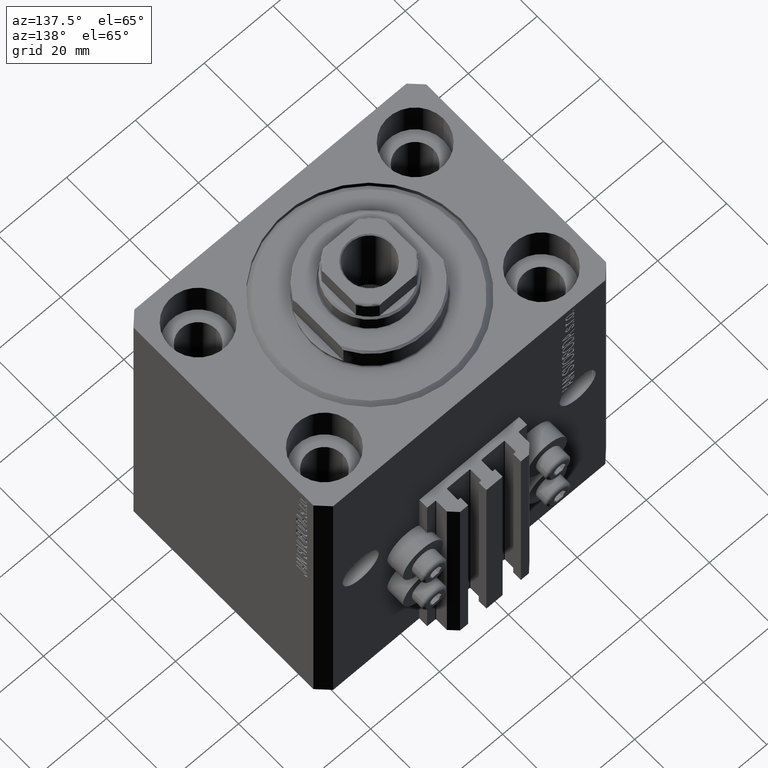
[diagram: clean part render]
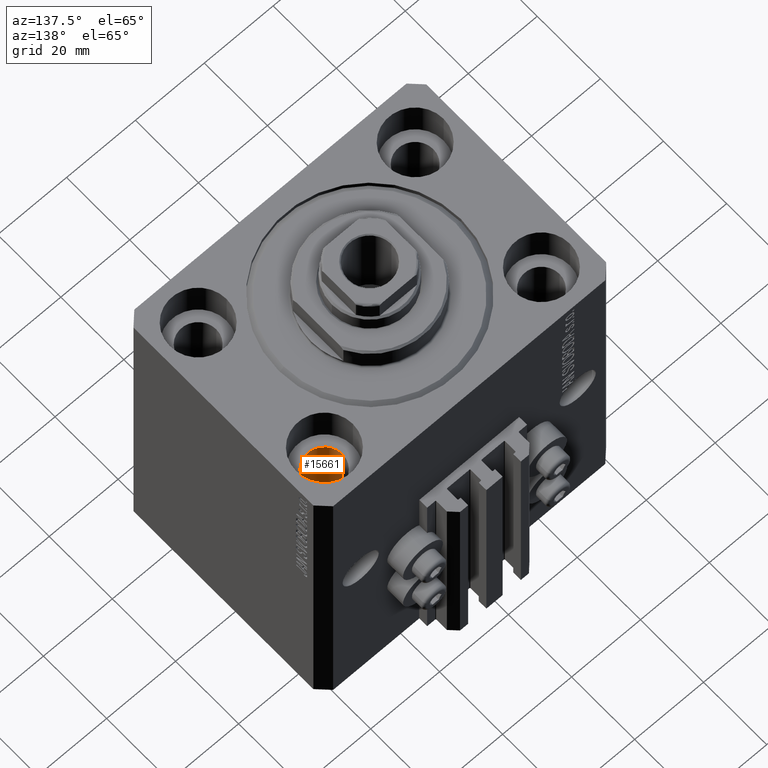
[diagram: same view with one face highlighted and labeled with its STEP entity id]
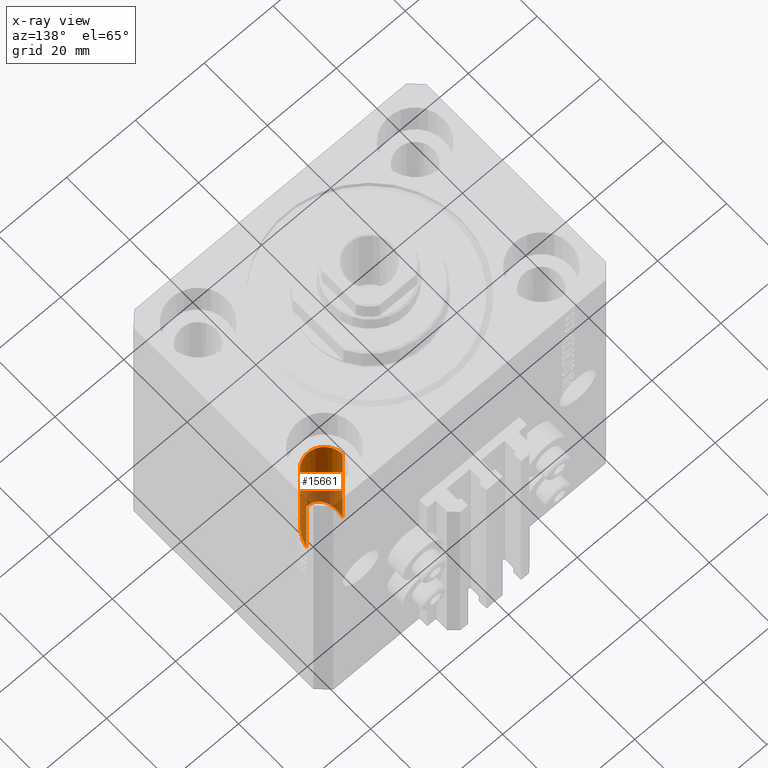
[diagram: x-ray of the same camera — body ghosted, the highlighted face saturated]
A machine part, auxiliary view. The second image highlights one B-rep face of the part: STEP entity #15661.
The next image is the same camera in x-ray: the body ghosted, the highlighted face saturated — about 48% of this face is hidden behind the body in this view.
In plain terms, the highlighted cylindrical surface (edge-blend (fillet) strip) has radius 5.25 mm, axis along (0, 0, 1).
Its self-contained STEP definition (entity closure, byte-faithful):
#145 = CARTESIAN_POINT ( 'NONE',  ( 31.50000000000000000, 20.00000000000001066, -11.00000000000000000 ) ) ;
#165 = VECTOR ( 'NONE', #5673, 1000.000000000000000 ) ;
#500 = VERTEX_POINT ( 'NONE', #22825 ) ;
#895 = CARTESIAN_POINT ( 'NONE',  ( 36.75000000000000711, 20.00000000000001066, -43.00000000000000000 ) ) ;
#1421 = DIRECTION ( 'NONE',  ( -0.000000000000000000, -0.000000000000000000, 1.000000000000000000 ) ) ;
#2019 = CARTESIAN_POINT ( 'NONE',  ( 36.75000000000000000, 20.00000000000001066, -11.00000000000000000 ) ) ;
#2287 = LINE ( 'NONE', #20787, #165 ) ;
#5673 = DIRECTION ( 'NONE',  ( -0.000000000000000000, -0.000000000000000000, 1.000000000000000000 ) ) ;
#8398 = CARTESIAN_POINT ( 'NONE',  ( 31.50000000000000000, 20.00000000000001066, -93.00000000000000000 ) ) ;
#9946 = AXIS2_PLACEMENT_3D ( 'NONE', #8398, #1421, #34827 ) ;
#12435 = CARTESIAN_POINT ( 'NONE',  ( 26.25000000000001776, 9.500000000000023093, -32.50000000000000711 ) ) ;
#13772 = EDGE_LOOP ( 'NONE', ( #38126, #28901, #42080, #33046 ) ) ;
#15281 = DIRECTION ( 'NONE',  ( 0.000000000000000000, 0.000000000000000000, 1.000000000000000000 ) ) ;
#15661 = ADVANCED_FACE ( 'NONE', ( #41345 ), #31223, .F. ) ;
#15707 = VECTOR ( 'NONE', #31446, 1000.000000000000000 ) ;
#16276 = CARTESIAN_POINT ( 'NONE',  ( 26.25000000000001066, 20.00000000000001066, -43.00000000000000000 ) ) ;
#16797 = CARTESIAN_POINT ( 'NONE',  ( 36.75000000000000000, 20.00000000000001066, -93.00000000000000000 ) ) ;
#18577 = VERTEX_POINT ( 'NONE', #21395 ) ;
#20787 = CARTESIAN_POINT ( 'NONE',  ( 26.25000000000000355, 20.00000000000001066, -93.00000000000000000 ) ) ;
#21181 = EDGE_CURVE ( 'NONE', #500, #31209, #42623, .T. ) ;
#21395 = CARTESIAN_POINT ( 'NONE',  ( 26.25000000000000355, 20.00000000000001066, -11.00000000000000000 ) ) ;
#21619 = AXIS2_PLACEMENT_3D ( 'NONE', #145, #15281, #44635 ) ;
#22825 = CARTESIAN_POINT ( 'NONE',  ( 36.75000000000000711, 20.00000000000001066, -43.00000000000000000 ) ) ;
#23010 = CARTESIAN_POINT ( 'NONE',  ( 26.25000000000001066, 20.00000000000001066, -43.00000000000000000 ) ) ;
#28901 = ORIENTED_EDGE ( 'NONE', *, *, #42422, .T. ) ;
#30221 = CARTESIAN_POINT ( 'NONE',  ( 36.75000000000000000, 9.500000000000023093, -32.50000000000000711 ) ) ;
#31209 = VERTEX_POINT ( 'NONE', #16276 ) ;
#31223 = CYLINDRICAL_SURFACE ( 'NONE', #9946, 5.249999999999997335 ) ;
#31446 = DIRECTION ( 'NONE',  ( -0.000000000000000000, -0.000000000000000000, 1.000000000000000000 ) ) ;
#33046 = ORIENTED_EDGE ( 'NONE', *, *, #47346, .F. ) ;
#34827 = DIRECTION ( 'NONE',  ( 1.000000000000000000, 0.000000000000000000, 0.000000000000000000 ) ) ;
#36738 = EDGE_CURVE ( 'NONE', #18577, #38658, #37711, .T. ) ;
#37711 = CIRCLE ( 'NONE', #21619, 5.249999999999997335 ) ;
#38126 = ORIENTED_EDGE ( 'NONE', *, *, #21181, .T. ) ;
#38658 = VERTEX_POINT ( 'NONE', #2019 ) ;
#41345 = FACE_OUTER_BOUND ( 'NONE', #13772, .T. ) ;
#42080 = ORIENTED_EDGE ( 'NONE', *, *, #36738, .T. ) ;
#42422 = EDGE_CURVE ( 'NONE', #31209, #18577, #2287, .T. ) ;
#42623 =( BOUNDED_CURVE ( )  B_SPLINE_CURVE ( 3, ( #895, #30221, #12435, #23010 ),
 .UNSPECIFIED., .F., .T. ) 
 B_SPLINE_CURVE_WITH_KNOTS ( ( 4, 4 ),
 ( 4.712388980384689674, 7.853981633974482790 ),
 .UNSPECIFIED. ) 
 CURVE ( )  GEOMETRIC_REPRESENTATION_ITEM ( )  RATIONAL_B_SPLINE_CURVE ( ( 1.000000000000000000, 0.3333333333333333703, 0.3333333333333333703, 1.000000000000000000 ) ) 
 REPRESENTATION_ITEM ( '' )  );
#44635 = DIRECTION ( 'NONE',  ( 1.000000000000000000, 0.000000000000000000, 0.000000000000000000 ) ) ;
#46612 = LINE ( 'NONE', #16797, #15707 ) ;
#47346 = EDGE_CURVE ( 'NONE', #500, #38658, #46612, .T. ) ;